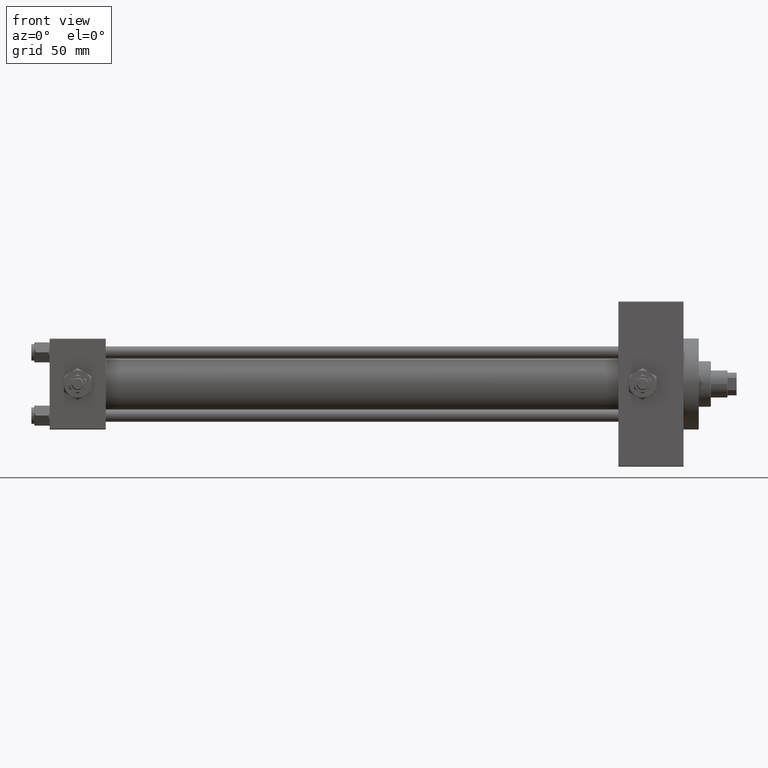
[diagram: clean part render]
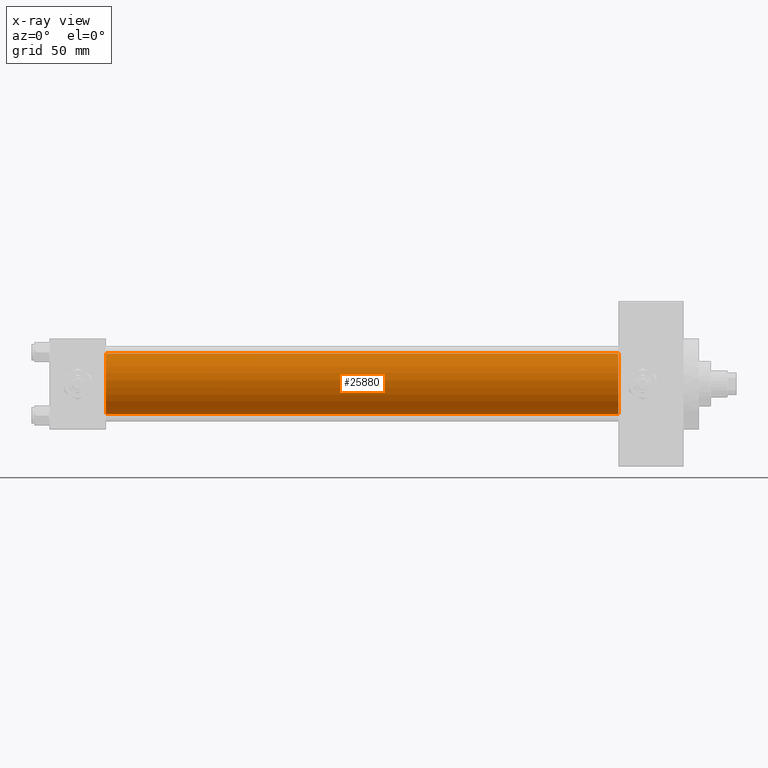
[diagram: x-ray — body ghosted, one internal face saturated and labeled with its STEP entity id]
A machine part, front view, then the same camera in x-ray: the body is ghosted and one INTERNAL B-rep face — a face not visible from any outside direction — is saturated and labeled: STEP entity #25880.
In plain terms, the highlighted cylindrical surface (edge-blend (fillet) strip) has radius 20 mm, axis along (-1, -0, -0).
Its self-contained STEP definition (entity closure, byte-faithful):
#3431 = VERTEX_POINT ( 'NONE', #4409 ) ;
#3644 = EDGE_LOOP ( 'NONE', ( #47839, #25618, #9678, #36305 ) ) ;
#3702 = DIRECTION ( 'NONE',  ( -1.000000000000000000, -0.000000000000000000, -0.000000000000000000 ) ) ;
#4409 = CARTESIAN_POINT ( 'NONE',  ( 375.0000000000000000, -2.602085213965210642E-15, 20.00000000000000000 ) ) ;
#5650 = DIRECTION ( 'NONE',  ( 1.000000000000000000, 0.000000000000000000, 0.000000000000000000 ) ) ;
#6226 = EDGE_CURVE ( 'NONE', #36733, #46619, #8512, .T. ) ;
#7053 = EDGE_CURVE ( 'NONE', #3431, #36733, #39869, .T. ) ;
#8420 = CARTESIAN_POINT ( 'NONE',  ( 375.0000000000000000, -2.602085213965210642E-15, 0.000000000000000000 ) ) ;
#8512 = LINE ( 'NONE', #35648, #17547 ) ;
#9678 = ORIENTED_EDGE ( 'NONE', *, *, #42629, .F. ) ;
#10239 = CIRCLE ( 'NONE', #21394, 20.00000000000000000 ) ;
#11423 = DIRECTION ( 'NONE',  ( 1.000000000000000000, 0.000000000000000000, 0.000000000000000000 ) ) ;
#12404 = DIRECTION ( 'NONE',  ( 0.000000000000000000, 0.000000000000000000, -1.000000000000000000 ) ) ;
#13988 = VERTEX_POINT ( 'NONE', #43278 ) ;
#15528 = CARTESIAN_POINT ( 'NONE',  ( 375.0000000000000000, -1.527916156705042519E-16, -20.00000000000000000 ) ) ;
#15898 = CYLINDRICAL_SURFACE ( 'NONE', #46275, 20.00000000000000000 ) ;
#17547 = VECTOR ( 'NONE', #35900, 1000.000000000000000 ) ;
#18511 = CARTESIAN_POINT ( 'NONE',  ( 375.0000000000000000, -2.602085213965210642E-15, 0.000000000000000000 ) ) ;
#21394 = AXIS2_PLACEMENT_3D ( 'NONE', #30810, #11423, #12404 ) ;
#21992 = DIRECTION ( 'NONE',  ( 0.000000000000000000, 0.000000000000000000, -1.000000000000000000 ) ) ;
#22867 = FACE_OUTER_BOUND ( 'NONE', #3644, .T. ) ;
#25618 = ORIENTED_EDGE ( 'NONE', *, *, #6226, .T. ) ;
#25880 = ADVANCED_FACE ( 'NONE', ( #22867 ), #15898, .F. ) ;
#27071 = DIRECTION ( 'NONE',  ( -1.000000000000000000, -0.000000000000000000, -0.000000000000000000 ) ) ;
#30810 = CARTESIAN_POINT ( 'NONE',  ( 37.00000000000000000, -2.602085213965210642E-15, 0.000000000000000000 ) ) ;
#32039 = LINE ( 'NONE', #47257, #35014 ) ;
#35014 = VECTOR ( 'NONE', #27071, 1000.000000000000000 ) ;
#35537 = CARTESIAN_POINT ( 'NONE',  ( 37.00000000000000000, -1.527916156705042519E-16, -20.00000000000000000 ) ) ;
#35648 = CARTESIAN_POINT ( 'NONE',  ( 375.0000000000000000, -1.527916156705042519E-16, -20.00000000000000000 ) ) ;
#35900 = DIRECTION ( 'NONE',  ( -1.000000000000000000, -0.000000000000000000, -0.000000000000000000 ) ) ;
#36305 = ORIENTED_EDGE ( 'NONE', *, *, #45849, .F. ) ;
#36733 = VERTEX_POINT ( 'NONE', #15528 ) ;
#37462 = AXIS2_PLACEMENT_3D ( 'NONE', #18511, #5650, #21992 ) ;
#38560 = DIRECTION ( 'NONE',  ( 0.000000000000000000, 0.000000000000000000, 1.000000000000000000 ) ) ;
#39869 = CIRCLE ( 'NONE', #37462, 20.00000000000000000 ) ;
#42629 = EDGE_CURVE ( 'NONE', #13988, #46619, #10239, .T. ) ;
#43278 = CARTESIAN_POINT ( 'NONE',  ( 37.00000000000000000, -2.602085213965210642E-15, 20.00000000000000000 ) ) ;
#45849 = EDGE_CURVE ( 'NONE', #3431, #13988, #32039, .T. ) ;
#46275 = AXIS2_PLACEMENT_3D ( 'NONE', #8420, #3702, #38560 ) ;
#46619 = VERTEX_POINT ( 'NONE', #35537 ) ;
#47257 = CARTESIAN_POINT ( 'NONE',  ( 375.0000000000000000, -2.602085213965210642E-15, 20.00000000000000000 ) ) ;
#47839 = ORIENTED_EDGE ( 'NONE', *, *, #7053, .T. ) ;